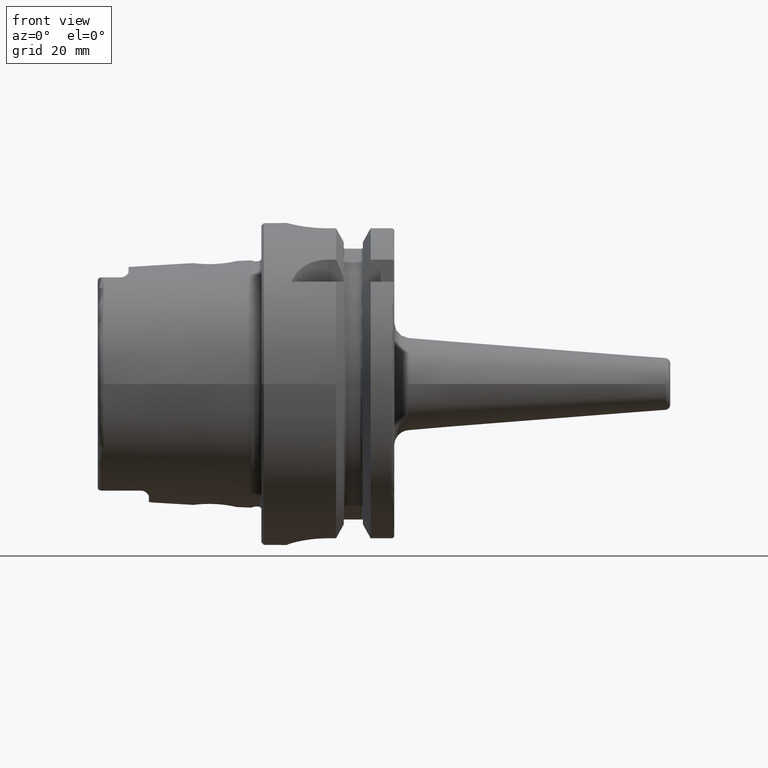
[diagram: clean part render]
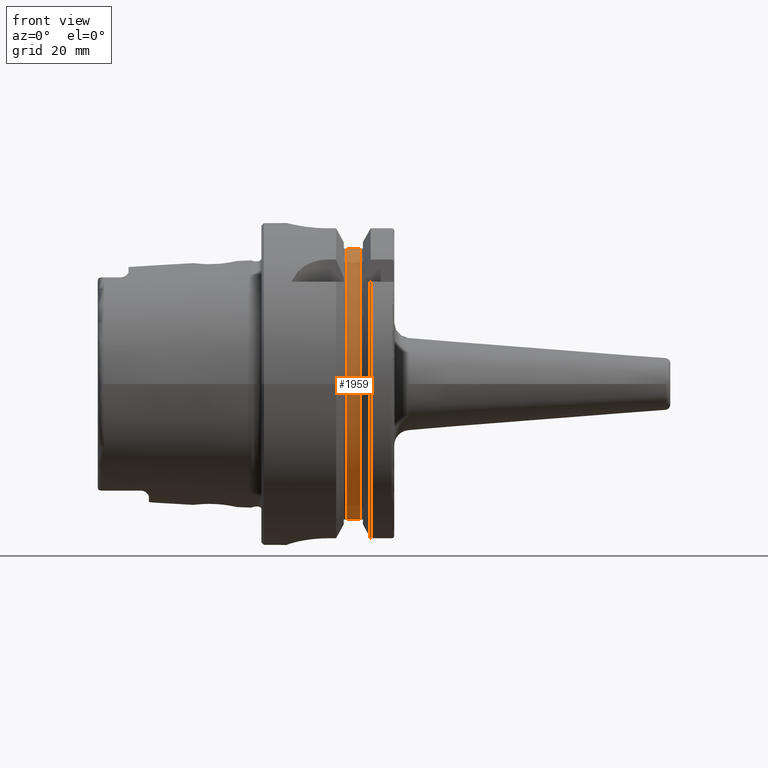
[diagram: same view with one face highlighted and labeled with its STEP entity id]
A machine part, front view. The second image highlights one B-rep face of the part: STEP entity #1959.
In plain terms, the highlighted cylindrical surface (partial cylindrical patch) has radius 27.5 mm, axis along (1, 0, 0).
Its self-contained STEP definition (entity closure, byte-faithful):
#245=FACE_OUTER_BOUND('',#362,.T.);
#362=EDGE_LOOP('',(#1593,#1594,#1595,#1596));
#488=LINE('',#3911,#593);
#499=LINE('',#4043,#604);
#593=VECTOR('',#2567,10.);
#604=VECTOR('',#2632,10.);
#694=CIRCLE('',#2160,27.5);
#700=CIRCLE('',#2172,27.5);
#883=VERTEX_POINT('',#3856);
#891=VERTEX_POINT('',#3900);
#904=VERTEX_POINT('',#3996);
#909=VERTEX_POINT('',#4041);
#1134=EDGE_CURVE('',#883,#891,#488,.T.);
#1156=EDGE_CURVE('',#904,#883,#694,.T.);
#1167=EDGE_CURVE('',#909,#891,#700,.T.);
#1168=EDGE_CURVE('',#909,#904,#499,.T.);
#1593=ORIENTED_EDGE('',*,*,#1134,.T.);
#1594=ORIENTED_EDGE('',*,*,#1167,.F.);
#1595=ORIENTED_EDGE('',*,*,#1168,.T.);
#1596=ORIENTED_EDGE('',*,*,#1156,.T.);
#1885=CYLINDRICAL_SURFACE('',#2171,27.5);
#1959=ADVANCED_FACE('',(#245),#1885,.T.);
#2160=AXIS2_PLACEMENT_3D('',#3997,#2604,#2605);
#2171=AXIS2_PLACEMENT_3D('',#4040,#2628,#2629);
#2172=AXIS2_PLACEMENT_3D('',#4042,#2630,#2631);
#2567=DIRECTION('',(1.,0.,0.));
#2604=DIRECTION('center_axis',(1.,0.,0.));
#2605=DIRECTION('ref_axis',(0.,0.,-1.));
#2628=DIRECTION('center_axis',(1.,0.,0.));
#2629=DIRECTION('ref_axis',(0.,-1.,-1.22464679914735E-16));
#2630=DIRECTION('center_axis',(1.,0.,0.));
#2631=DIRECTION('ref_axis',(0.,0.,-1.));
#2632=DIRECTION('',(-1.,0.,0.));
#3856=CARTESIAN_POINT('',(16.625,-7.34846922834952,-26.5));
#3900=CARTESIAN_POINT('',(19.375,-7.34846922834952,-26.5));
#3911=CARTESIAN_POINT('',(18.,-7.34846922834952,-26.5));
#3996=CARTESIAN_POINT('',(16.625,-7.34846922834952,26.5));
#3997=CARTESIAN_POINT('Origin',(16.625,0.,0.));
#4040=CARTESIAN_POINT('Origin',(18.,0.,0.));
#4041=CARTESIAN_POINT('',(19.375,-7.34846922834952,26.5));
#4042=CARTESIAN_POINT('Origin',(19.375,0.,0.));
#4043=CARTESIAN_POINT('',(18.,-7.34846922834952,26.5));